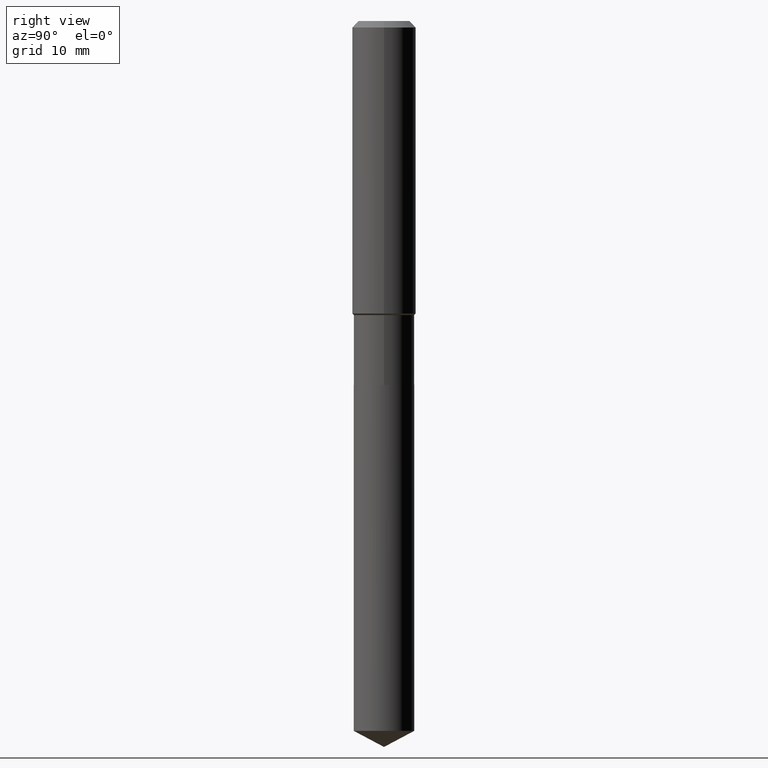
[diagram: clean part render]
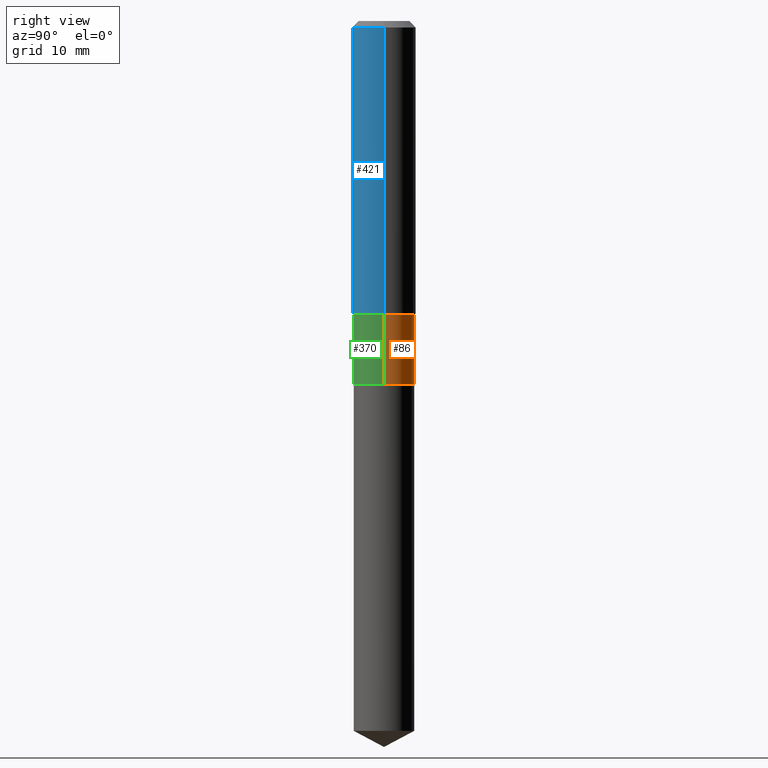
[diagram: same view with three faces highlighted in distinct colors, each labeled with its STEP entity id]
A machine part, right view with three faces highlighted in distinct colors.
Their STEP definitions:

[orange] entity #86 — the highlighted cylindrical surface (edge-blend (fillet) strip) has radius 3.7998 mm, axis along (-0, 0, 1).
#4 = EDGE_CURVE ( 'NONE', #93, #434, #73, .T. ) ;
#21 = DIRECTION ( 'NONE',  ( 1.000000000000000000, -6.982962677686268288E-15, 0.000000000000000000 ) ) ;
#33 = DIRECTION ( 'NONE',  ( -2.445468806185136597E-29, 3.491481338843145583E-15, 1.000000000000000000 ) ) ;
#34 = VERTEX_POINT ( 'NONE', #266 ) ;
#35 = EDGE_LOOP ( 'NONE', ( #462, #413, #141, #377 ) ) ;
#61 = CARTESIAN_POINT ( 'NONE',  ( 4.389127413341083429E-29, -6.266510706955677702E-15, -1.794800000000000173 ) ) ;
#71 = AXIS2_PLACEMENT_3D ( 'NONE', #479, #33, #456 ) ;
#73 = LINE ( 'NONE', #305, #480 ) ;
#77 = LINE ( 'NONE', #232, #216 ) ;
#81 = EDGE_CURVE ( 'NONE', #155, #34, #77, .T. ) ;
#86 = ADVANCED_FACE ( 'NONE', ( #235 ), #379, .T. ) ;
#93 = VERTEX_POINT ( 'NONE', #137 ) ;
#103 = DIRECTION ( 'NONE',  ( 1.000000000000000000, -6.982962677686262766E-15, 0.000000000000000000 ) ) ;
#137 = CARTESIAN_POINT ( 'NONE',  ( 0.1496000000000000107, -7.311161923537544091E-15, -1.794800000000000173 ) ) ;
#141 = ORIENTED_EDGE ( 'NONE', *, *, #240, .F. ) ;
#155 = VERTEX_POINT ( 'NONE', #402 ) ;
#158 = CIRCLE ( 'NONE', #270, 0.1495999999999999830 ) ;
#195 = CARTESIAN_POINT ( 'NONE',  ( 0.1495999999999999830, -6.111488935511037930E-15, -1.451200000000000045 ) ) ;
#198 = EDGE_CURVE ( 'NONE', #93, #155, #236, .T. ) ;
#214 = DIRECTION ( 'NONE',  ( -2.445468806185136597E-29, 3.491481338843145583E-15, 1.000000000000000000 ) ) ;
#216 = VECTOR ( 'NONE', #313, 39.37007874015748143 ) ;
#222 = DIRECTION ( 'NONE',  ( -2.445468806185136877E-29, 3.491481338843145188E-15, 1.000000000000000000 ) ) ;
#232 = CARTESIAN_POINT ( 'NONE',  ( -0.1495999999999999830, 1.062971932697109757E-15, -7.358726895021338760E-30 ) ) ;
#235 = FACE_OUTER_BOUND ( 'NONE', #35, .T. ) ;
#236 = CIRCLE ( 'NONE', #302, 0.1496000000000000107 ) ;
#240 = EDGE_CURVE ( 'NONE', #434, #34, #158, .T. ) ;
#266 = CARTESIAN_POINT ( 'NONE',  ( -0.1495999999999999830, -4.603702280245315850E-15, -1.451200000000000045 ) ) ;
#270 = AXIS2_PLACEMENT_3D ( 'NONE', #443, #433, #103 ) ;
#302 = AXIS2_PLACEMENT_3D ( 'NONE', #61, #214, #21 ) ;
#305 = CARTESIAN_POINT ( 'NONE',  ( 0.1495999999999999830, -1.044651216581865404E-15, 7.294760456590720327E-30 ) ) ;
#313 = DIRECTION ( 'NONE',  ( -2.445468806185136877E-29, 3.491481338843145188E-15, 1.000000000000000000 ) ) ;
#377 = ORIENTED_EDGE ( 'NONE', *, *, #4, .F. ) ;
#379 = CYLINDRICAL_SURFACE ( 'NONE', #71, 0.1495999999999999830 ) ;
#402 = CARTESIAN_POINT ( 'NONE',  ( -0.1496000000000000107, -4.603702280245315061E-15, -1.794800000000000173 ) ) ;
#413 = ORIENTED_EDGE ( 'NONE', *, *, #81, .T. ) ;
#433 = DIRECTION ( 'NONE',  ( -2.445468806185136597E-29, 3.491481338843145583E-15, 1.000000000000000000 ) ) ;
#434 = VERTEX_POINT ( 'NONE', #195 ) ;
#443 = CARTESIAN_POINT ( 'NONE',  ( 3.548864331535870340E-29, -5.066837718929173118E-15, -1.451200000000000045 ) ) ;
#456 = DIRECTION ( 'NONE',  ( 1.000000000000000000, -6.982962677686266711E-15, 4.876176775795936353E-29 ) ) ;
#462 = ORIENTED_EDGE ( 'NONE', *, *, #198, .T. ) ;
#479 = CARTESIAN_POINT ( 'NONE',  ( 0.000000000000000000, 0.000000000000000000, 0.000000000000000000 ) ) ;
#480 = VECTOR ( 'NONE', #222, 39.37007874015748143 ) ;

[blue] entity #421 — the highlighted cylindrical surface (edge-blend (fillet) strip) has radius 4.0005 mm, axis along (-0, 0, 1).
#40 = CARTESIAN_POINT ( 'NONE',  ( 0.000000000000000000, 0.000000000000000000, 0.000000000000000000 ) ) ;
#45 = FACE_OUTER_BOUND ( 'NONE', #454, .T. ) ;
#53 = EDGE_CURVE ( 'NONE', #269, #69, #418, .T. ) ;
#55 = CARTESIAN_POINT ( 'NONE',  ( 7.703226739483226971E-31, -1.099816621735597538E-16, -0.03150000000000019451 ) ) ;
#62 = CIRCLE ( 'NONE', #173, 0.1575000000000001676 ) ;
#69 = VERTEX_POINT ( 'NONE', #486 ) ;
#76 = DIRECTION ( 'NONE',  ( 1.000000000000000000, -6.982962677686265922E-15, 0.000000000000000000 ) ) ;
#84 = DIRECTION ( 'NONE',  ( -2.445468806185136597E-29, 3.491481338843145583E-15, 1.000000000000000000 ) ) ;
#119 = EDGE_CURVE ( 'NONE', #378, #342, #406, .T. ) ;
#122 = DIRECTION ( 'NONE',  ( -2.445468806185136877E-29, 3.491481338843145188E-15, 1.000000000000000000 ) ) ;
#125 = DIRECTION ( 'NONE',  ( 1.000000000000000000, -6.982962677686267499E-15, 0.000000000000000000 ) ) ;
#127 = CARTESIAN_POINT ( 'NONE',  ( 0.1575000000000001676, -6.139071638087900053E-15, -1.443299999999999805 ) ) ;
#164 = EDGE_CURVE ( 'NONE', #378, #269, #62, .T. ) ;
#173 = AXIS2_PLACEMENT_3D ( 'NONE', #247, #397, #125 ) ;
#193 = ORIENTED_EDGE ( 'NONE', *, *, #164, .T. ) ;
#211 = DIRECTION ( 'NONE',  ( -2.445468806185136597E-29, 3.491481338843145583E-15, 1.000000000000000000 ) ) ;
#245 = AXIS2_PLACEMENT_3D ( 'NONE', #40, #84, #459 ) ;
#247 = CARTESIAN_POINT ( 'NONE',  ( 3.529545127967007664E-29, -5.039255016352311783E-15, -1.443299999999999805 ) ) ;
#269 = VERTEX_POINT ( 'NONE', #127 ) ;
#292 = EDGE_CURVE ( 'NONE', #342, #69, #295, .T. ) ;
#294 = VECTOR ( 'NONE', #337, 39.37007874015748143 ) ;
#295 = CIRCLE ( 'NONE', #340, 0.1575000000000000011 ) ;
#310 = CARTESIAN_POINT ( 'NONE',  ( 0.1575000000000000844, -1.099816621735587677E-15, 7.679978421878603638E-30 ) ) ;
#321 = CARTESIAN_POINT ( 'NONE',  ( -0.1575000000000000011, -1.455513530440777031E-15, -0.03150000000000019451 ) ) ;
#337 = DIRECTION ( 'NONE',  ( -2.445468806185136877E-29, 3.491481338843145188E-15, 1.000000000000000000 ) ) ;
#340 = AXIS2_PLACEMENT_3D ( 'NONE', #55, #211, #76 ) ;
#342 = VERTEX_POINT ( 'NONE', #321 ) ;
#353 = CARTESIAN_POINT ( 'NONE',  ( -0.1575000000000001676, -3.920150207530152602E-15, -1.443299999999999805 ) ) ;
#366 = VECTOR ( 'NONE', #122, 39.37007874015748143 ) ;
#378 = VERTEX_POINT ( 'NONE', #353 ) ;
#382 = CYLINDRICAL_SURFACE ( 'NONE', #245, 0.1575000000000000844 ) ;
#384 = ORIENTED_EDGE ( 'NONE', *, *, #53, .T. ) ;
#397 = DIRECTION ( 'NONE',  ( -2.445468806185136597E-29, 3.491481338843145583E-15, 1.000000000000000000 ) ) ;
#406 = LINE ( 'NONE', #424, #366 ) ;
#412 = ORIENTED_EDGE ( 'NONE', *, *, #292, .F. ) ;
#418 = LINE ( 'NONE', #310, #294 ) ;
#421 = ADVANCED_FACE ( 'NONE', ( #45 ), #382, .T. ) ;
#424 = CARTESIAN_POINT ( 'NONE',  ( -0.1575000000000000844, 1.119104808822158392E-15, -7.747322767151481189E-30 ) ) ;
#454 = EDGE_LOOP ( 'NONE', ( #487, #193, #384, #412 ) ) ;
#459 = DIRECTION ( 'NONE',  ( 1.000000000000000000, -6.982962677686267499E-15, 4.876176775795936353E-29 ) ) ;
#486 = CARTESIAN_POINT ( 'NONE',  ( 0.1575000000000000011, -1.209798283909146741E-15, -0.03150000000000019451 ) ) ;
#487 = ORIENTED_EDGE ( 'NONE', *, *, #119, .F. ) ;

[green] entity #370 — the highlighted cylindrical surface (edge-blend (fillet) strip) has radius 3.7998 mm, axis along (-0, 0, 1).
#4 = EDGE_CURVE ( 'NONE', #93, #434, #73, .T. ) ;
#34 = VERTEX_POINT ( 'NONE', #266 ) ;
#37 = CYLINDRICAL_SURFACE ( 'NONE', #201, 0.1495999999999999830 ) ;
#66 = CARTESIAN_POINT ( 'NONE',  ( 3.548864331535870340E-29, -5.066837718929173118E-15, -1.451200000000000045 ) ) ;
#73 = LINE ( 'NONE', #305, #480 ) ;
#77 = LINE ( 'NONE', #232, #216 ) ;
#81 = EDGE_CURVE ( 'NONE', #155, #34, #77, .T. ) ;
#82 = ORIENTED_EDGE ( 'NONE', *, *, #414, .T. ) ;
#85 = CARTESIAN_POINT ( 'NONE',  ( 4.389127413341083429E-29, -6.266510706955677702E-15, -1.794800000000000173 ) ) ;
#93 = VERTEX_POINT ( 'NONE', #137 ) ;
#104 = CIRCLE ( 'NONE', #238, 0.1495999999999999830 ) ;
#113 = DIRECTION ( 'NONE',  ( -2.445468806185136597E-29, 3.491481338843145583E-15, 1.000000000000000000 ) ) ;
#137 = CARTESIAN_POINT ( 'NONE',  ( 0.1496000000000000107, -7.311161923537544091E-15, -1.794800000000000173 ) ) ;
#154 = DIRECTION ( 'NONE',  ( 1.000000000000000000, -6.982962677686268288E-15, 0.000000000000000000 ) ) ;
#155 = VERTEX_POINT ( 'NONE', #402 ) ;
#165 = AXIS2_PLACEMENT_3D ( 'NONE', #85, #350, #154 ) ;
#181 = CIRCLE ( 'NONE', #165, 0.1496000000000000107 ) ;
#184 = EDGE_LOOP ( 'NONE', ( #428, #82, #395, #450 ) ) ;
#195 = CARTESIAN_POINT ( 'NONE',  ( 0.1495999999999999830, -6.111488935511037930E-15, -1.451200000000000045 ) ) ;
#201 = AXIS2_PLACEMENT_3D ( 'NONE', #234, #113, #351 ) ;
#216 = VECTOR ( 'NONE', #313, 39.37007874015748143 ) ;
#221 = DIRECTION ( 'NONE',  ( -2.445468806185136597E-29, 3.491481338843145583E-15, 1.000000000000000000 ) ) ;
#222 = DIRECTION ( 'NONE',  ( -2.445468806185136877E-29, 3.491481338843145188E-15, 1.000000000000000000 ) ) ;
#232 = CARTESIAN_POINT ( 'NONE',  ( -0.1495999999999999830, 1.062971932697109757E-15, -7.358726895021338760E-30 ) ) ;
#234 = CARTESIAN_POINT ( 'NONE',  ( 0.000000000000000000, 0.000000000000000000, 0.000000000000000000 ) ) ;
#238 = AXIS2_PLACEMENT_3D ( 'NONE', #66, #221, #415 ) ;
#266 = CARTESIAN_POINT ( 'NONE',  ( -0.1495999999999999830, -4.603702280245315850E-15, -1.451200000000000045 ) ) ;
#305 = CARTESIAN_POINT ( 'NONE',  ( 0.1495999999999999830, -1.044651216581865404E-15, 7.294760456590720327E-30 ) ) ;
#307 = EDGE_CURVE ( 'NONE', #34, #434, #104, .T. ) ;
#313 = DIRECTION ( 'NONE',  ( -2.445468806185136877E-29, 3.491481338843145188E-15, 1.000000000000000000 ) ) ;
#350 = DIRECTION ( 'NONE',  ( -2.445468806185136597E-29, 3.491481338843145583E-15, 1.000000000000000000 ) ) ;
#351 = DIRECTION ( 'NONE',  ( 1.000000000000000000, -6.982962677686266711E-15, 4.876176775795936353E-29 ) ) ;
#370 = ADVANCED_FACE ( 'NONE', ( #464 ), #37, .T. ) ;
#395 = ORIENTED_EDGE ( 'NONE', *, *, #4, .T. ) ;
#402 = CARTESIAN_POINT ( 'NONE',  ( -0.1496000000000000107, -4.603702280245315061E-15, -1.794800000000000173 ) ) ;
#414 = EDGE_CURVE ( 'NONE', #155, #93, #181, .T. ) ;
#415 = DIRECTION ( 'NONE',  ( 1.000000000000000000, -6.982962677686262766E-15, 0.000000000000000000 ) ) ;
#428 = ORIENTED_EDGE ( 'NONE', *, *, #81, .F. ) ;
#434 = VERTEX_POINT ( 'NONE', #195 ) ;
#450 = ORIENTED_EDGE ( 'NONE', *, *, #307, .F. ) ;
#464 = FACE_OUTER_BOUND ( 'NONE', #184, .T. ) ;
#480 = VECTOR ( 'NONE', #222, 39.37007874015748143 ) ;